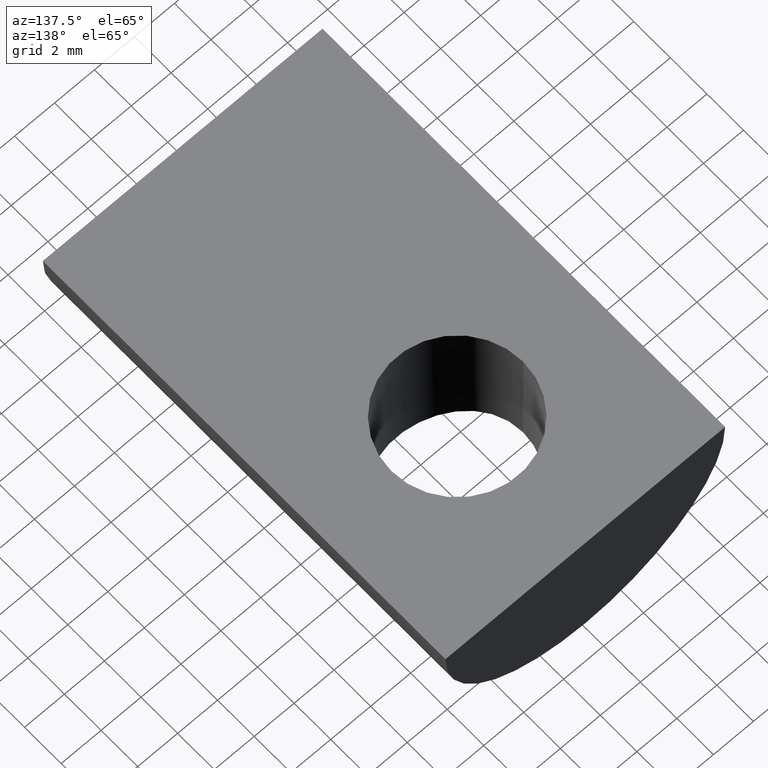
[diagram: clean part render]
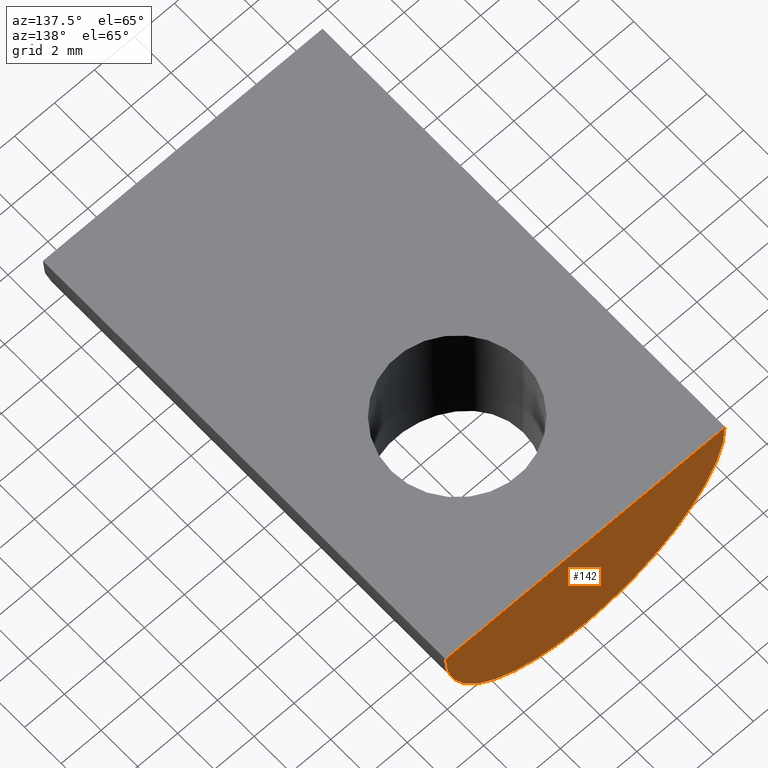
[diagram: same view with one face highlighted and labeled with its STEP entity id]
A machine part, auxiliary view. The second image highlights one B-rep face of the part: STEP entity #142.
In plain terms, the highlighted planar face has unit normal (0, -1, 0).
Its self-contained STEP definition (entity closure, byte-faithful):
#7=CARTESIAN_POINT('',(-6.999997490998146,6.999998446000063,0.000003814998640));
#8=VERTEX_POINT('',#7);
#9=CARTESIAN_POINT('',(6.999999401001860,6.999998446000063,-0.000003814999682));
#10=VERTEX_POINT('',#9);
#11=CARTESIAN_POINT('',(0.000000955008075,6.999998446000063,0.000011410006200));
#12=DIRECTION('',(0.0,-1.0,6.123234E-017));
#13=DIRECTION('',(1.0,0.0,0.0));
#14=AXIS2_PLACEMENT_3D('',#11,#12,#13);
#15=CIRCLE('',#14,6.999998446010341);
#16=EDGE_CURVE('',#8,#10,#15,.T.);
#104=CARTESIAN_POINT('',(6.999999401001860,6.999998446000063,-0.000003814999682));
#105=DIRECTION('',(-0.999999999999852,0.0,0.000000545000001));
#106=VECTOR('',#105,13.999996892002077);
#107=LINE('',#104,#106);
#108=EDGE_CURVE('',#10,#8,#107,.T.);
#133=CARTESIAN_POINT('',(-8.400117182650140,6.999998446000063,-7.700106123539294));
#134=DIRECTION('',(0.0,-1.0,0.0));
#135=DIRECTION('',(1.0,0.0,0.0));
#136=AXIS2_PLACEMENT_3D('',#133,#134,#135);
#137=PLANE('',#136);
#138=ORIENTED_EDGE('',*,*,#108,.F.);
#139=ORIENTED_EDGE('',*,*,#16,.F.);
#140=EDGE_LOOP('',(#138,#139));
#141=FACE_OUTER_BOUND('',#140,.T.);
#142=ADVANCED_FACE('',(#141),#137,.F.);